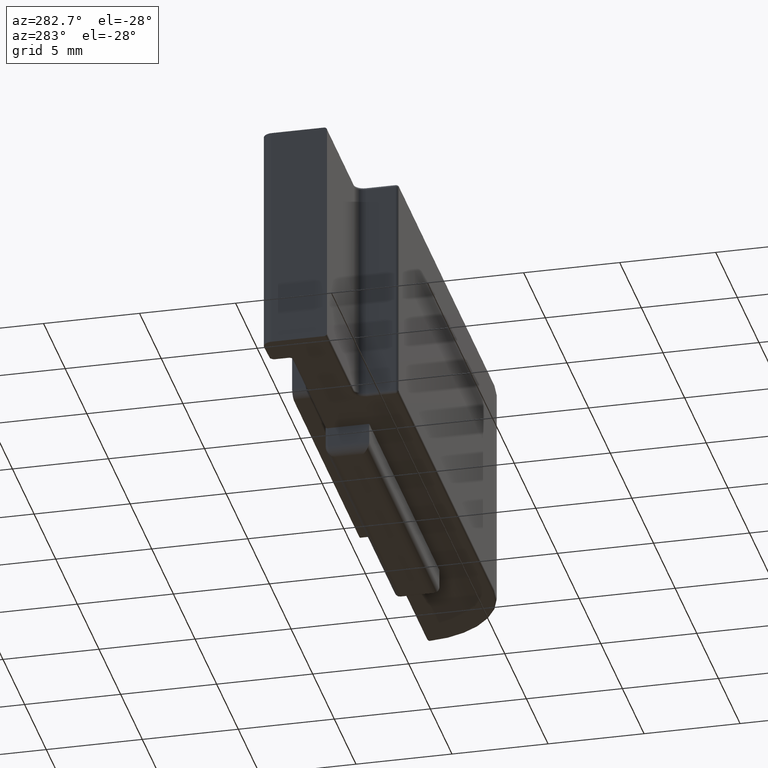
[diagram: clean part render]
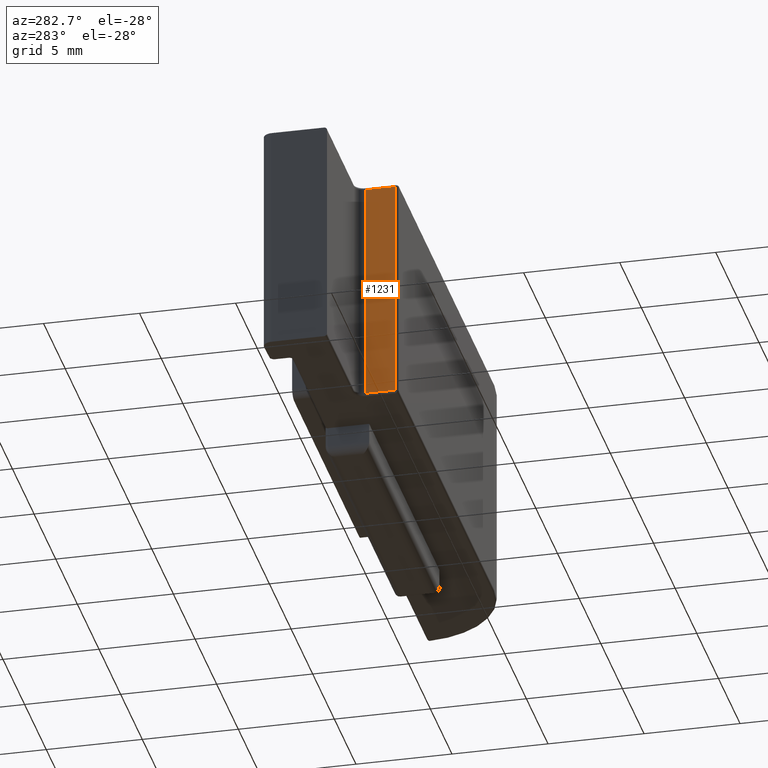
[diagram: same view with one face highlighted and labeled with its STEP entity id]
A machine part, auxiliary view. The second image highlights one B-rep face of the part: STEP entity #1231.
In plain terms, the highlighted planar face has unit normal (1, -0, 0).
Its self-contained STEP definition (entity closure, byte-faithful):
#5 = EDGE_CURVE ( 'NONE', #267, #697, #1718, .T. ) ;
#70 = ORIENTED_EDGE ( 'NONE', *, *, #1646, .T. ) ;
#80 = VECTOR ( 'NONE', #277, 1000.000000000000000 ) ;
#97 = DIRECTION ( 'NONE',  ( 1.000000000000000000, -4.377113509970985798E-32, 0.000000000000000000 ) ) ;
#108 = CARTESIAN_POINT ( 'NONE',  ( -8.973082695440531177E-32, -4.950000000000002842, 12.00000000000000000 ) ) ;
#171 = FACE_OUTER_BOUND ( 'NONE', #705, .T. ) ;
#197 = LINE ( 'NONE', #1320, #602 ) ;
#207 = CARTESIAN_POINT ( 'NONE',  ( -2.188556754985493446E-32, -3.400000000000000799, 0.1500000000000008271 ) ) ;
#267 = VERTEX_POINT ( 'NONE', #2176 ) ;
#277 = DIRECTION ( 'NONE',  ( -4.377113509970985798E-32, -1.000000000000000000, 0.000000000000000000 ) ) ;
#286 = DIRECTION ( 'NONE',  ( -0.000000000000000000, -0.000000000000000000, 1.000000000000000000 ) ) ;
#301 = DIRECTION ( 'NONE',  ( 0.000000000000000000, 0.000000000000000000, -1.000000000000000000 ) ) ;
#309 = LINE ( 'NONE', #108, #1561 ) ;
#602 = VECTOR ( 'NONE', #301, 1000.000000000000000 ) ;
#697 = VERTEX_POINT ( 'NONE', #1620 ) ;
#705 = EDGE_LOOP ( 'NONE', ( #740, #1000, #2191, #70 ) ) ;
#740 = ORIENTED_EDGE ( 'NONE', *, *, #1353, .T. ) ;
#765 = DIRECTION ( 'NONE',  ( 4.377113509970985798E-32, 1.000000000000000000, 0.000000000000000000 ) ) ;
#766 = CARTESIAN_POINT ( 'NONE',  ( -9.629649721936179265E-32, -5.100000000000003197, 11.84999999999999964 ) ) ;
#820 = LINE ( 'NONE', #1096, #80 ) ;
#1000 = ORIENTED_EDGE ( 'NONE', *, *, #5, .T. ) ;
#1096 = CARTESIAN_POINT ( 'NONE',  ( -8.973082695440531177E-32, -4.950000000000002842, 0.1500000000000008271 ) ) ;
#1133 = CARTESIAN_POINT ( 'NONE',  ( -9.629649721936179265E-32, -5.100000000000003197, 12.00000000000000000 ) ) ;
#1231 = ADVANCED_FACE ( 'NONE', ( #171 ), #2137, .F. ) ;
#1320 = CARTESIAN_POINT ( 'NONE',  ( -2.188556754985493446E-32, -3.400000000000000799, 0.000000000000000000 ) ) ;
#1353 = EDGE_CURVE ( 'NONE', #1726, #267, #309, .T. ) ;
#1367 = EDGE_CURVE ( 'NONE', #697, #2055, #197, .T. ) ;
#1445 = DIRECTION ( 'NONE',  ( 4.377113509970985798E-32, 1.000000000000000000, -0.000000000000000000 ) ) ;
#1446 = CARTESIAN_POINT ( 'NONE',  ( -8.973082695440531177E-32, -4.950000000000002842, 0.1500000000000008271 ) ) ;
#1561 = VECTOR ( 'NONE', #286, 1000.000000000000000 ) ;
#1573 = AXIS2_PLACEMENT_3D ( 'NONE', #1133, #97, #765 ) ;
#1620 = CARTESIAN_POINT ( 'NONE',  ( -2.188556754985493446E-32, -3.400000000000000799, 11.84999999999999964 ) ) ;
#1646 = EDGE_CURVE ( 'NONE', #2055, #1726, #820, .T. ) ;
#1718 = LINE ( 'NONE', #766, #1856 ) ;
#1726 = VERTEX_POINT ( 'NONE', #1446 ) ;
#1856 = VECTOR ( 'NONE', #1445, 1000.000000000000000 ) ;
#2055 = VERTEX_POINT ( 'NONE', #207 ) ;
#2137 = PLANE ( 'NONE',  #1573 ) ;
#2176 = CARTESIAN_POINT ( 'NONE',  ( -8.973082695440531177E-32, -4.950000000000002842, 11.84999999999999964 ) ) ;
#2191 = ORIENTED_EDGE ( 'NONE', *, *, #1367, .T. ) ;